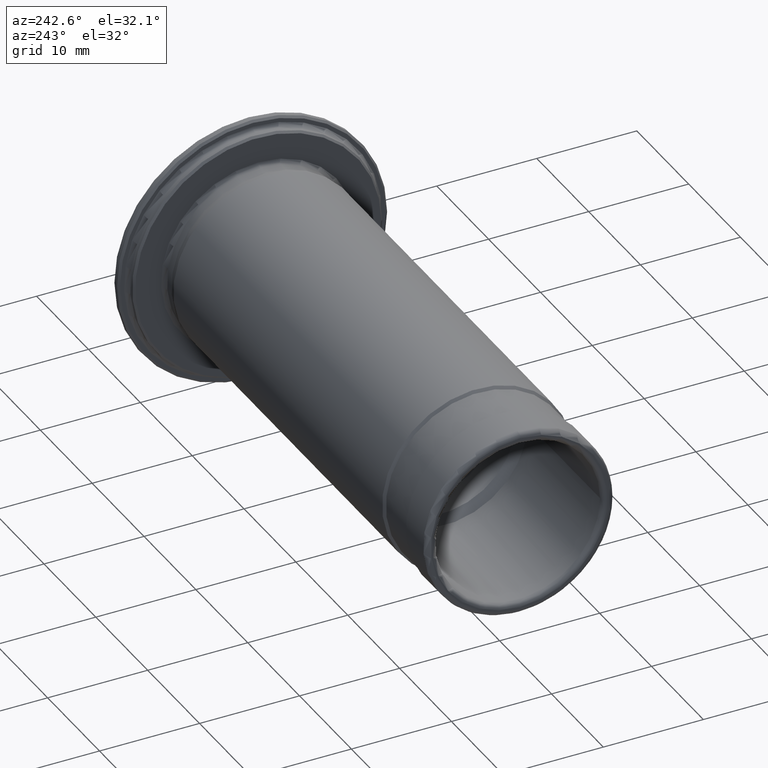
[diagram: clean part render]
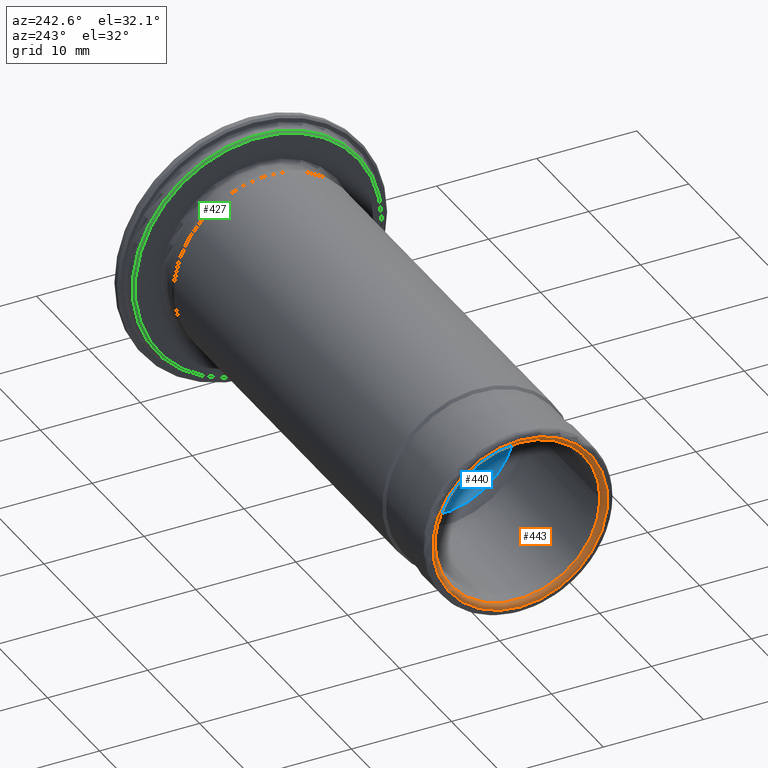
[diagram: same view with three faces highlighted in distinct colors, each labeled with its STEP entity id]
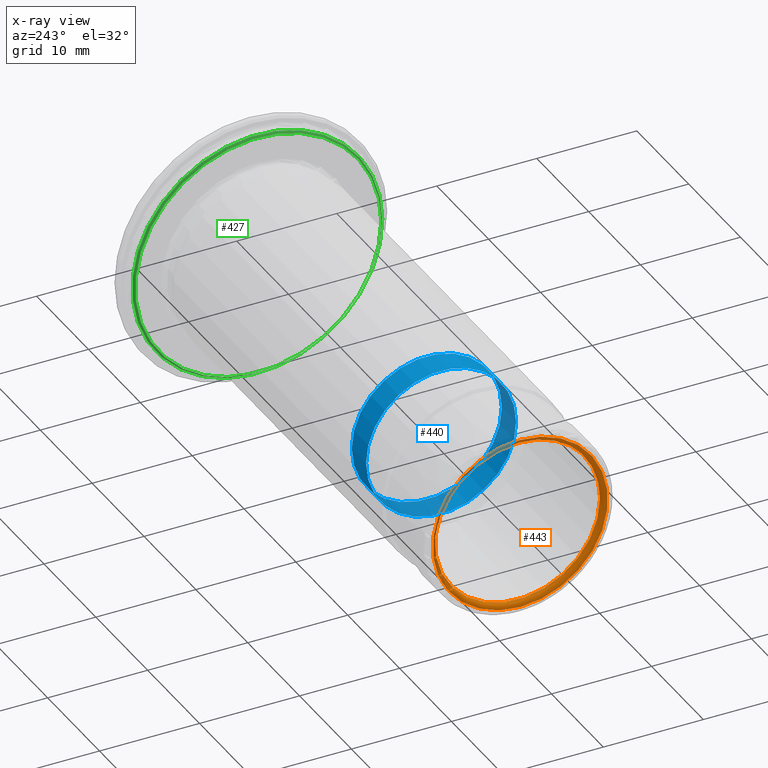
[diagram: x-ray of the same camera — body ghosted, the three highlighted faces saturated]
A machine part, auxiliary view with three faces highlighted in distinct colors.
The next image is the same camera in x-ray (body ghosted, the three faces saturated) — at least one of them is partly hidden behind the body in this view.
Their STEP definitions:

[orange] entity #443 — the highlighted toroidal blend (fillet) surface has major radius 8.75 mm and minor (blend) radius 0.5 mm.
#38=TOROIDAL_SURFACE('',#532,8.75000000000011,0.5);
#61=FACE_OUTER_BOUND('',#93,.T.);
#93=EDGE_LOOP('',(#381,#382,#383,#384,#385));
#171=CIRCLE('',#530,8.25000000000011);
#172=CIRCLE('',#531,8.25000000000011);
#173=CIRCLE('',#533,8.75000000000011);
#174=CIRCLE('',#534,0.5);
#212=VERTEX_POINT('',#818);
#213=VERTEX_POINT('',#820);
#214=VERTEX_POINT('',#824);
#269=EDGE_CURVE('',#213,#212,#171,.T.);
#270=EDGE_CURVE('',#212,#213,#172,.T.);
#271=EDGE_CURVE('',#214,#214,#173,.T.);
#272=EDGE_CURVE('',#214,#213,#174,.T.);
#381=ORIENTED_EDGE('',*,*,#271,.F.);
#382=ORIENTED_EDGE('',*,*,#272,.T.);
#383=ORIENTED_EDGE('',*,*,#269,.T.);
#384=ORIENTED_EDGE('',*,*,#270,.T.);
#385=ORIENTED_EDGE('',*,*,#272,.F.);
#443=ADVANCED_FACE('',(#61),#38,.T.);
#530=AXIS2_PLACEMENT_3D('',#821,#676,#677);
#531=AXIS2_PLACEMENT_3D('',#822,#678,#679);
#532=AXIS2_PLACEMENT_3D('',#823,#680,#681);
#533=AXIS2_PLACEMENT_3D('',#825,#682,#683);
#534=AXIS2_PLACEMENT_3D('',#826,#684,#685);
#676=DIRECTION('center_axis',(1.,0.,0.));
#677=DIRECTION('ref_axis',(0.,0.,-1.));
#678=DIRECTION('center_axis',(1.,0.,0.));
#679=DIRECTION('ref_axis',(0.,0.,-1.));
#680=DIRECTION('center_axis',(1.,0.,0.));
#681=DIRECTION('ref_axis',(0.,0.,-1.));
#682=DIRECTION('center_axis',(1.,0.,0.));
#683=DIRECTION('ref_axis',(0.,0.,-1.));
#684=DIRECTION('center_axis',(0.,-1.,-1.22464679914735E-16));
#685=DIRECTION('ref_axis',(0.,-1.22464679914735E-16,1.));
#818=CARTESIAN_POINT('',(-53.4451026195505,-8.2500000000001,-1.01033360929658E-15));
#820=CARTESIAN_POINT('',(-53.4451026195505,-1.01033360929658E-15,8.25000000000011));
#821=CARTESIAN_POINT('Origin',(-53.4451026195505,0.,0.));
#822=CARTESIAN_POINT('Origin',(-53.4451026195505,0.,0.));
#823=CARTESIAN_POINT('Origin',(-53.4451026195505,0.,0.));
#824=CARTESIAN_POINT('',(-53.9451026195506,-1.07156594925395E-15,8.75000000000011));
#825=CARTESIAN_POINT('Origin',(-53.9451026195505,0.,0.));
#826=CARTESIAN_POINT('Origin',(-53.4451026195505,-1.07156594925395E-15,
8.75000000000011));

[blue] entity #440 — the highlighted cylindrical surface (bore or boss wall) has radius 7.5 mm, axis along (1, 0, 0).
#27=CYLINDRICAL_SURFACE('',#525,7.50000000000012);
#58=FACE_OUTER_BOUND('',#90,.T.);
#90=EDGE_LOOP('',(#368,#369,#370,#371));
#111=LINE('',#811,#128);
#128=VECTOR('',#665,7.50000000000012);
#168=CIRCLE('',#524,7.50000000000011);
#169=CIRCLE('',#526,7.50000000000011);
#209=VERTEX_POINT('',#806);
#210=VERTEX_POINT('',#810);
#263=EDGE_CURVE('',#209,#209,#168,.T.);
#264=EDGE_CURVE('',#209,#210,#111,.T.);
#265=EDGE_CURVE('',#210,#210,#169,.T.);
#368=ORIENTED_EDGE('',*,*,#263,.T.);
#369=ORIENTED_EDGE('',*,*,#264,.T.);
#370=ORIENTED_EDGE('',*,*,#265,.F.);
#371=ORIENTED_EDGE('',*,*,#264,.F.);
#440=ADVANCED_FACE('',(#58),#27,.F.);
#524=AXIS2_PLACEMENT_3D('',#808,#661,#662);
#525=AXIS2_PLACEMENT_3D('',#809,#663,#664);
#526=AXIS2_PLACEMENT_3D('',#812,#666,#667);
#661=DIRECTION('center_axis',(1.,0.,0.));
#662=DIRECTION('ref_axis',(0.,0.,-1.));
#663=DIRECTION('center_axis',(1.,0.,0.));
#664=DIRECTION('ref_axis',(0.,1.,0.));
#665=DIRECTION('',(-1.,0.,0.));
#666=DIRECTION('center_axis',(1.,0.,0.));
#667=DIRECTION('ref_axis',(0.,0.,-1.));
#806=CARTESIAN_POINT('',(-35.9451026195505,-7.50000000000011,-9.18485099360528E-16));
#808=CARTESIAN_POINT('Origin',(-35.9451026195505,0.,0.));
#809=CARTESIAN_POINT('Origin',(-37.3201026195506,0.,0.));
#810=CARTESIAN_POINT('',(-38.6951026195507,-7.50000000000012,-9.1848509936053E-16));
#811=CARTESIAN_POINT('',(-37.3201026195506,-7.50000000000012,-9.1848509936053E-16));
#812=CARTESIAN_POINT('Origin',(-38.6951026195507,0.,0.));

[green] entity #427 — the highlighted conical surface has half-angle 45 deg.
#45=FACE_OUTER_BOUND('',#75,.T.);
#75=EDGE_LOOP('',(#310,#311,#312,#313));
#104=LINE('',#752,#121);
#121=VECTOR('',#590,12.4000000000002);
#146=CIRCLE('',#489,12.3000000000003);
#147=CIRCLE('',#491,12.5000000000001);
#191=VERTEX_POINT('',#747);
#192=VERTEX_POINT('',#750);
#234=EDGE_CURVE('',#191,#191,#146,.T.);
#235=EDGE_CURVE('',#192,#192,#147,.T.);
#236=EDGE_CURVE('',#192,#191,#104,.T.);
#310=ORIENTED_EDGE('',*,*,#235,.F.);
#311=ORIENTED_EDGE('',*,*,#236,.T.);
#312=ORIENTED_EDGE('',*,*,#234,.T.);
#313=ORIENTED_EDGE('',*,*,#236,.F.);
#415=CONICAL_SURFACE('',#490,12.4000000000002,0.785398163396194);
#427=ADVANCED_FACE('',(#45),#415,.T.);
#489=AXIS2_PLACEMENT_3D('',#748,#584,#585);
#490=AXIS2_PLACEMENT_3D('',#749,#586,#587);
#491=AXIS2_PLACEMENT_3D('',#751,#588,#589);
#584=DIRECTION('center_axis',(1.,0.,0.));
#585=DIRECTION('ref_axis',(0.,0.,-1.));
#586=DIRECTION('center_axis',(1.,0.,0.));
#587=DIRECTION('ref_axis',(0.,1.,0.));
#588=DIRECTION('center_axis',(1.,0.,0.));
#589=DIRECTION('ref_axis',(0.,0.,-1.));
#590=DIRECTION('',(-0.707106781187435,0.70710678118566,8.65956056234407E-17));
#747=CARTESIAN_POINT('',(-3.4451026195505,-12.3000000000003,-1.50631556295128E-15));
#748=CARTESIAN_POINT('Origin',(-3.4451026195505,0.,0.));
#749=CARTESIAN_POINT('Origin',(-3.34510261955034,0.,0.));
#750=CARTESIAN_POINT('',(-3.24510261955018,-12.5000000000001,-1.5308084989342E-15));
#751=CARTESIAN_POINT('Origin',(-3.24510261955018,0.,0.));
#752=CARTESIAN_POINT('',(-3.34510261955034,-12.4000000000002,-1.51856203094274E-15));